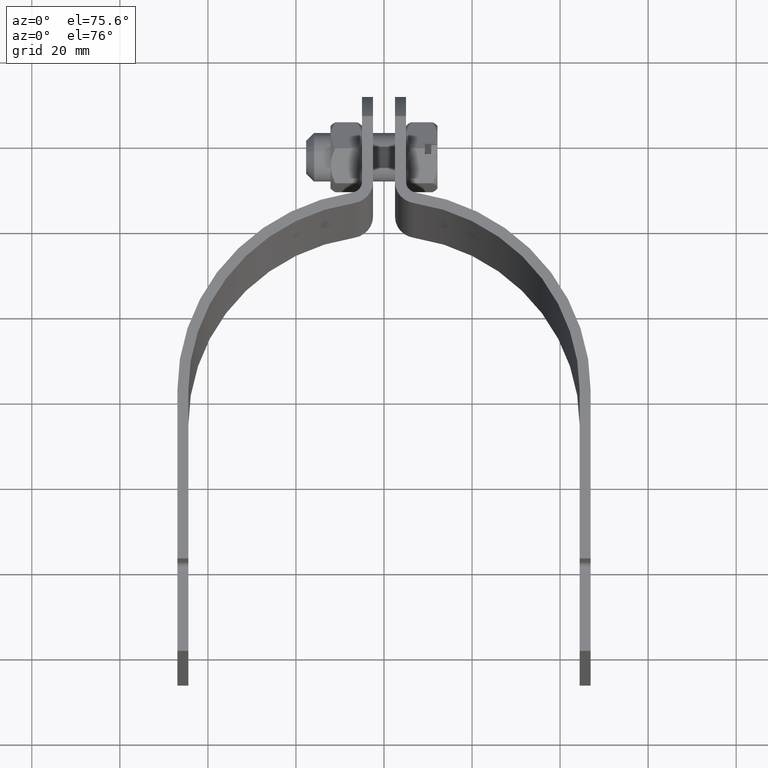
[diagram: clean part render]
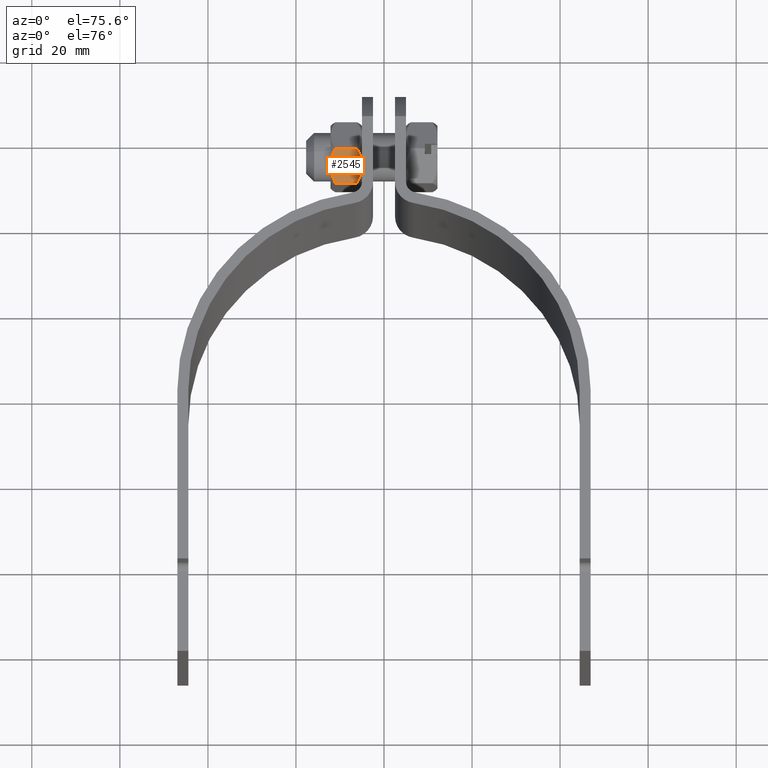
[diagram: same view with one face highlighted and labeled with its STEP entity id]
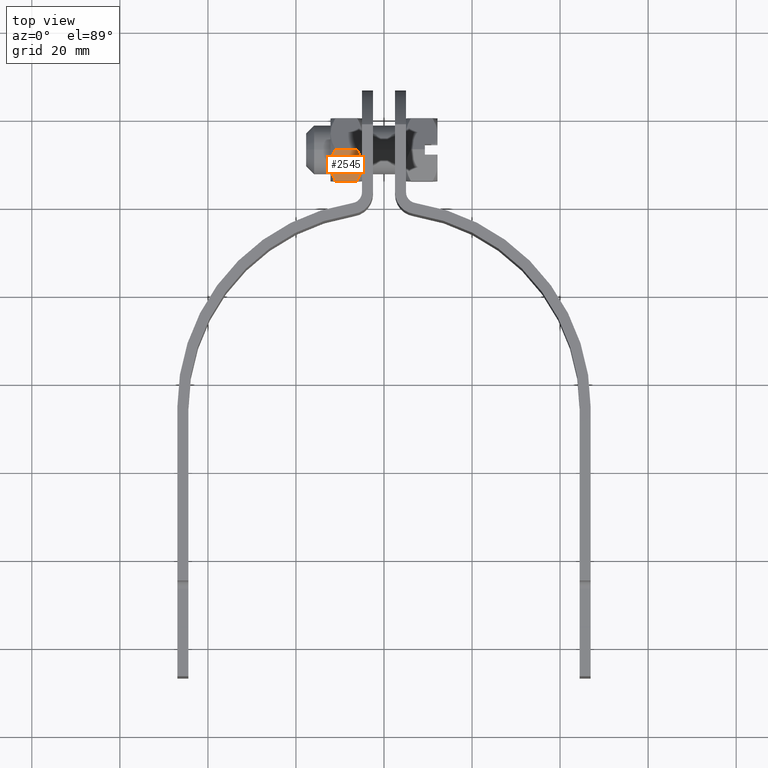
[diagram: same view with one face highlighted and labeled with its STEP entity id]
A machine part, auxiliary view. The second image highlights one B-rep face of the part: STEP entity #2545.
A second angle (top view) of the same face is appended — the face is thin or edge-on in the first view.
In plain terms, the highlighted planar face has unit normal (-0, 0.5, -0.866).
Its self-contained STEP definition (entity closure, byte-faithful):
#53 = CARTESIAN_POINT ( 'NONE',  ( -12.14375000000000426, 46.03749999999997300, 4.124445985523387037 ) ) ;
#185 = CARTESIAN_POINT ( 'NONE',  ( -5.135161258884414437, 48.36239633418789907, 5.466725509904762248 ) ) ;
#191 = EDGE_CURVE ( 'NONE', #1313, #989, #2943, .T. ) ;
#218 = FACE_OUTER_BOUND ( 'NONE', #278, .T. ) ;
#250 = VECTOR ( 'NONE', #1233, 1000.000000000000000 ) ;
#278 = EDGE_LOOP ( 'NONE', ( #1535, #811, #1471, #1545, #347, #2467 ) ) ;
#338 = CARTESIAN_POINT ( 'NONE',  ( -5.505053495188653834, 52.04590447585967894, 7.593399927061143195 ) ) ;
#339 = DIRECTION ( 'NONE',  ( 1.000000000000000000, 2.727869752446350788E-16, -0.000000000000000000 ) ) ;
#347 = ORIENTED_EDGE ( 'NONE', *, *, #2401, .F. ) ;
#358 = LINE ( 'NONE', #53, #250 ) ;
#370 = CARTESIAN_POINT ( 'NONE',  ( -12.14375000000000071, 49.60937499999996447, 6.186668978285081444 ) ) ;
#390 = CARTESIAN_POINT ( 'NONE',  ( -12.03405537674757220, 50.84139524442279168, 6.897976198049671659 ) ) ;
#511 = EDGE_CURVE ( 'NONE', #3244, #1544, #358, .T. ) ;
#567 = EDGE_CURVE ( 'NONE', #1544, #1313, #1605, .T. ) ;
#656 = CARTESIAN_POINT ( 'NONE',  ( -5.000000000000001776, 49.60937499999997868, 6.186668978285071674 ) ) ;
#692 = CARTESIAN_POINT ( 'NONE',  ( -11.03860802895321314, 46.03749999999997300, 4.124445985523387037 ) ) ;
#751 = CARTESIAN_POINT ( 'NONE',  ( -11.36199397494656615, 46.59762088891418585, 4.447831931516740056 ) ) ;
#811 = ORIENTED_EDGE ( 'NONE', *, *, #567, .T. ) ;
#940 = CARTESIAN_POINT ( 'NONE',  ( -6.105141971046791127, 53.18124999999997016, 8.248891971046782956 ) ) ;
#964 = CARTESIAN_POINT ( 'NONE',  ( -12.14374999999998295, 50.23066721512060440, 6.545372205930404697 ) ) ;
#989 = VERTEX_POINT ( 'NONE', #3073 ) ;
#1006 = CARTESIAN_POINT ( 'NONE',  ( -5.000000000000001776, 49.60937499999997868, 6.186668978285071674 ) ) ;
#1047 = CARTESIAN_POINT ( 'NONE',  ( -5.781756025053431003, 46.59762088891417875, 4.447831931516740944 ) ) ;
#1082 = CARTESIAN_POINT ( 'NONE',  ( -5.000000000000013323, 49.29653754653070763, 6.006052190312008321 ) ) ;
#1198 = CARTESIAN_POINT ( 'NONE',  ( -5.782130282742459215, 52.62177734441848287, 7.925880282742573613 ) ) ;
#1233 = DIRECTION ( 'NONE',  ( 1.000000000000000000, 2.727869752446350788E-16, -0.000000000000000000 ) ) ;
#1238 = CARTESIAN_POINT ( 'NONE',  ( -5.000000000000001776, 49.60937499999997868, 6.186668978285071674 ) ) ;
#1313 = VERTEX_POINT ( 'NONE', #656 ) ;
#1332 = CARTESIAN_POINT ( 'NONE',  ( -11.03860802895320603, 53.18124999999997016, 8.248891971046782956 ) ) ;
#1376 = PLANE ( 'NONE',  #3599 ) ;
#1401 = VERTEX_POINT ( 'NONE', #1332 ) ;
#1471 = ORIENTED_EDGE ( 'NONE', *, *, #191, .T. ) ;
#1535 = ORIENTED_EDGE ( 'NONE', *, *, #511, .T. ) ;
#1544 = VERTEX_POINT ( 'NONE', #3248 ) ;
#1545 = ORIENTED_EDGE ( 'NONE', *, *, #2651, .F. ) ;
#1589 = CARTESIAN_POINT ( 'NONE',  ( -5.506962022411650892, 47.17041869095561424, 4.778536896716596871 ) ) ;
#1605 = B_SPLINE_CURVE_WITH_KNOTS ( 'NONE', 3,
 ( #3653, #1047, #1589, #3639, #185, #2768, #1082, #1006 ),
 .UNSPECIFIED., .F., .F.,
 ( 4, 2, 2, 4 ),
 ( 2.544315940921403973E-07, 0.002137935315674599837, 0.003206775757714853785, 0.004275616199755107733 ),
 .UNSPECIFIED. ) ;
#1680 = DIRECTION ( 'NONE',  ( -1.363934876223177859E-16, 0.5000000000000007772, -0.8660254037844382635 ) ) ;
#1730 = CARTESIAN_POINT ( 'NONE',  ( -12.00858874111558272, 48.36239633418789907, 5.466725509904760472 ) ) ;
#1731 = B_SPLINE_CURVE_WITH_KNOTS ( 'NONE', 3,
 ( #3373, #751, #1898, #2667, #1730, #2909, #3196, #3245 ),
 .UNSPECIFIED., .F., .F.,
 ( 4, 2, 2, 4 ),
 ( 2.544315940923905897E-07, 0.002137935315674595934, 0.003206775757714847280, 0.004275616199755099059 ),
 .UNSPECIFIED. ) ;
#1775 = CARTESIAN_POINT ( 'NONE',  ( -11.03860802895320603, 53.18124999999997016, 8.248891971046782956 ) ) ;
#1789 = CARTESIAN_POINT ( 'NONE',  ( -5.000000000000013323, 50.23066721512061861, 6.545372205930406473 ) ) ;
#1809 = LINE ( 'NONE', #2991, #2361 ) ;
#1898 = CARTESIAN_POINT ( 'NONE',  ( -11.63678797758834804, 47.17041869095562134, 4.778536896716597759 ) ) ;
#1915 = B_SPLINE_CURVE_WITH_KNOTS ( 'NONE', 3,
 ( #370, #964, #390, #3610, #3319, #1775 ),
 .UNSPECIFIED., .F., .F.,
 ( 4, 2, 4 ),
 ( 0.004275616199755099059, 0.006398323178991451900, 0.008521030158227804741 ),
 .UNSPECIFIED. ) ;
#2361 = VECTOR ( 'NONE', #339, 1000.000000000000000 ) ;
#2401 = EDGE_CURVE ( 'NONE', #3714, #1401, #1915, .T. ) ;
#2467 = ORIENTED_EDGE ( 'NONE', *, *, #3344, .F. ) ;
#2545 = ADVANCED_FACE ( 'NONE', ( #218 ), #1376, .F. ) ;
#2549 = CARTESIAN_POINT ( 'NONE',  ( -12.14375000000000426, 46.03749999999997300, 4.124445985523387037 ) ) ;
#2651 = EDGE_CURVE ( 'NONE', #1401, #989, #1809, .T. ) ;
#2667 = CARTESIAN_POINT ( 'NONE',  ( -11.93059376477683564, 48.06050033100697760, 5.292425771200996110 ) ) ;
#2768 = CARTESIAN_POINT ( 'NONE',  ( -5.028353767397264029, 48.97901931097175066, 5.822732951539425272 ) ) ;
#2859 = DIRECTION ( 'NONE',  ( 0.000000000000000000, 0.8660254037844381525, 0.5000000000000006661 ) ) ;
#2909 = CARTESIAN_POINT ( 'NONE',  ( -12.11539623260273402, 48.97901931097174355, 5.822732951539420831 ) ) ;
#2943 = B_SPLINE_CURVE_WITH_KNOTS ( 'NONE', 3,
 ( #1238, #1789, #3272, #338, #1198, #940 ),
 .UNSPECIFIED., .F., .F.,
 ( 4, 2, 4 ),
 ( 0.004275616199755107733, 0.006398323178991457104, 0.008521030158227806475 ),
 .UNSPECIFIED. ) ;
#2991 = CARTESIAN_POINT ( 'NONE',  ( -12.14375000000000604, 53.18124999999997016, 8.248891971046782956 ) ) ;
#3073 = CARTESIAN_POINT ( 'NONE',  ( -6.105141971046791127, 53.18124999999997016, 8.248891971046782956 ) ) ;
#3147 = CARTESIAN_POINT ( 'NONE',  ( -12.14375000000000071, 49.60937499999996447, 6.186668978285081444 ) ) ;
#3196 = CARTESIAN_POINT ( 'NONE',  ( -12.14374999999998295, 49.29653754653070052, 6.006052190312004768 ) ) ;
#3244 = VERTEX_POINT ( 'NONE', #692 ) ;
#3245 = CARTESIAN_POINT ( 'NONE',  ( -12.14375000000000071, 49.60937499999996447, 6.186668978285081444 ) ) ;
#3248 = CARTESIAN_POINT ( 'NONE',  ( -6.105141971046785798, 46.03749999999997300, 4.124445985523387037 ) ) ;
#3272 = CARTESIAN_POINT ( 'NONE',  ( -5.109694623252430290, 50.84139524442280589, 6.897976198049676100 ) ) ;
#3319 = CARTESIAN_POINT ( 'NONE',  ( -11.36161971725753972, 52.62177734441848287, 7.925880282742571836 ) ) ;
#3344 = EDGE_CURVE ( 'NONE', #3244, #3714, #1731, .T. ) ;
#3373 = CARTESIAN_POINT ( 'NONE',  ( -11.03860802895321314, 46.03749999999997300, 4.124445985523387037 ) ) ;
#3599 = AXIS2_PLACEMENT_3D ( 'NONE', #2549, #1680, #2859 ) ;
#3610 = CARTESIAN_POINT ( 'NONE',  ( -11.63869650481134421, 52.04590447585965762, 7.593399927061139643 ) ) ;
#3639 = CARTESIAN_POINT ( 'NONE',  ( -5.213156235223161517, 48.06050033100701313, 5.292425771200997886 ) ) ;
#3653 = CARTESIAN_POINT ( 'NONE',  ( -6.105141971046785798, 46.03749999999997300, 4.124445985523387037 ) ) ;
#3714 = VERTEX_POINT ( 'NONE', #3147 ) ;